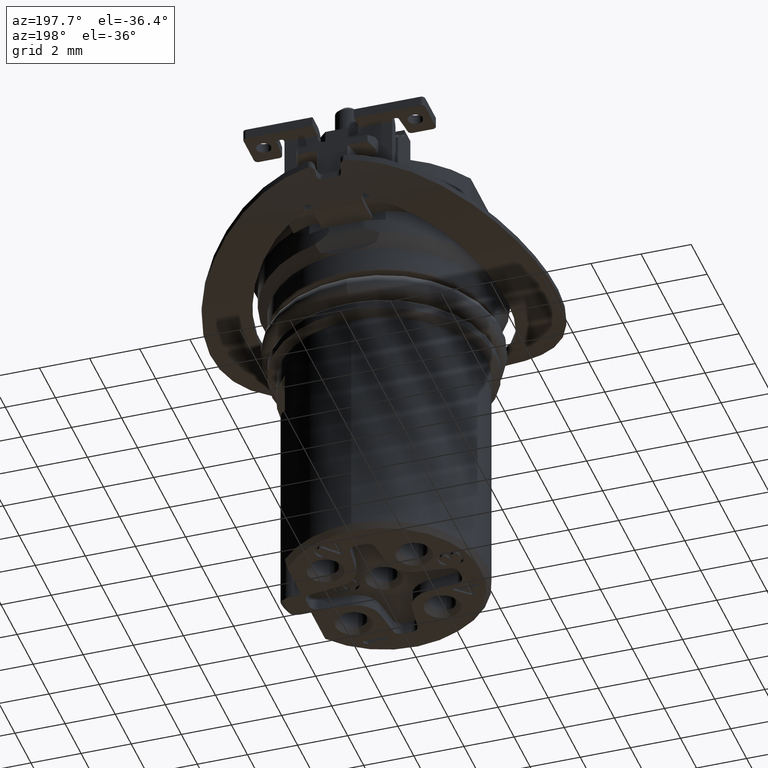
[diagram: clean part render]
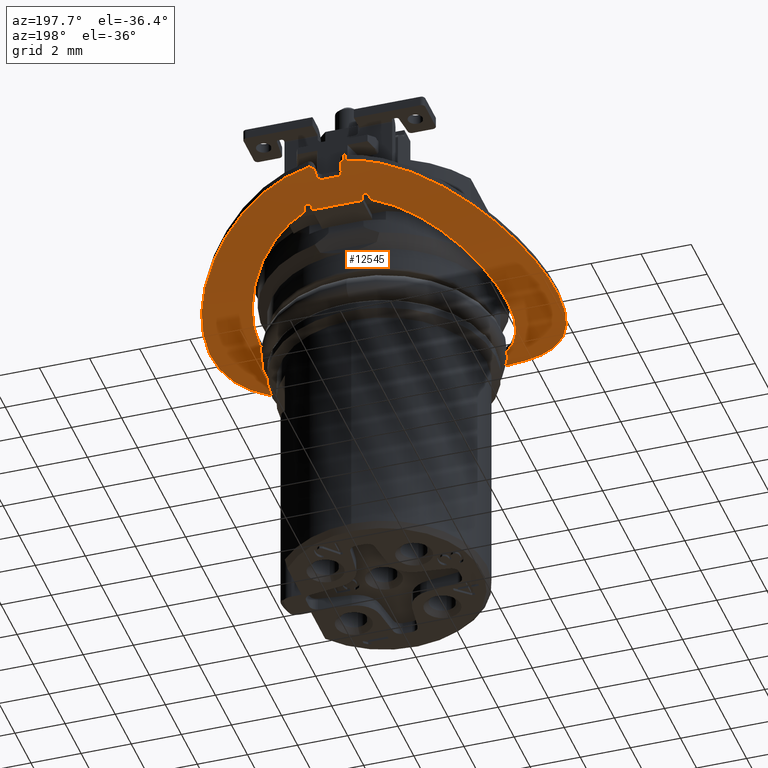
[diagram: same view with one face highlighted and labeled with its STEP entity id]
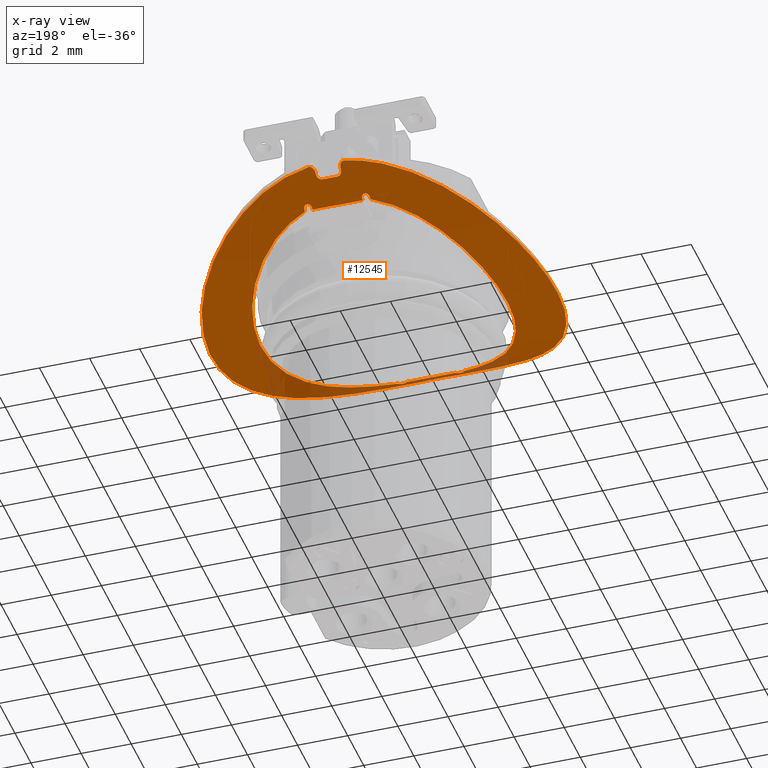
[diagram: x-ray of the same camera — body ghosted, the highlighted face saturated]
A machine part, auxiliary view. The second image highlights one B-rep face of the part: STEP entity #12545.
The next image is the same camera in x-ray: the body ghosted, the highlighted face saturated — about 8% of this face is hidden behind the body in this view.
In plain terms, the highlighted cylindrical surface (partial cylindrical patch) has radius 11.6082 mm, axis along (1, 0, 0).
Its self-contained STEP definition (entity closure, byte-faithful):
#1129=CARTESIAN_POINT('',(3.E-1,6.75E0,-3.337183663975E0));
#1130=CARTESIAN_POINT('',(3.131810634956E-1,6.75E0,-3.337183663975E0));
#1131=CARTESIAN_POINT('',(3.398528558982E-1,6.752634215733E0,
-3.335301688194E0));
#1132=CARTESIAN_POINT('',(3.787897037414E-1,6.764628060218E0,
-3.326717832133E0));
#1133=CARTESIAN_POINT('',(4.159956150611E-1,6.785154247117E0,
-3.311974506276E0));
#1134=CARTESIAN_POINT('',(4.495925898192E-1,6.814637076929E0,
-3.290679590589E0));
#1135=CARTESIAN_POINT('',(4.771737358887E-1,6.853080821155E0,
-3.262699714013E0));
#1136=CARTESIAN_POINT('',(4.955613804710E-1,6.899103695345E0,
-3.228878541785E0));
#1137=CARTESIAN_POINT('',(5.E-1,6.932709879553E0,-3.203909099699E0));
#1138=CARTESIAN_POINT('',(5.E-1,6.95E0,-3.190984788626E0));
#1159=CARTESIAN_POINT('',(-5.E-1,6.95E0,-3.190984788626E0));
#1160=CARTESIAN_POINT('',(-5.E-1,6.932710212802E0,-3.203908850597E0));
#1161=CARTESIAN_POINT('',(-4.955617450406E-1,6.899104375606E0,
-3.228878044306E0));
#1162=CARTESIAN_POINT('',(-4.771726600282E-1,6.853078712756E0,
-3.262701257940E0));
#1163=CARTESIAN_POINT('',(-4.495920662081E-1,6.814636636423E0,
-3.290679907317E0));
#1164=CARTESIAN_POINT('',(-4.159944937398E-1,6.785153354026E0,
-3.311975150929E0));
#1165=CARTESIAN_POINT('',(-3.787878308700E-1,6.764627211779E0,
-3.326718440025E0));
#1166=CARTESIAN_POINT('',(-3.398503176880E-1,6.752633743913E0,
-3.335302025460E0));
#1167=CARTESIAN_POINT('',(-3.131800002200E-1,6.75E0,-3.337183663975E0));
#1168=CARTESIAN_POINT('',(-3.E-1,6.75E0,-3.337183663975E0));
#1189=CARTESIAN_POINT('',(5.E-1,7.011414153925E0,-3.144760164902E0));
#1190=CARTESIAN_POINT('',(5.E-1,7.030535960378E0,-3.130268320892E0));
#1191=CARTESIAN_POINT('',(5.052296187194E-1,7.066680578301E0,
-3.102693874852E0));
#1192=CARTESIAN_POINT('',(5.272468937289E-1,7.116784055909E0,
-3.064011067424E0));
#1193=CARTESIAN_POINT('',(5.594848944239E-1,7.156530321737E0,
-3.033000823438E0));
#1194=CARTESIAN_POINT('',(5.975179586036E-1,7.185193522242E0,
-3.010466491975E0));
#1195=CARTESIAN_POINT('',(6.382648478375E-1,7.203283985379E0,
-2.996169473675E0));
#1196=CARTESIAN_POINT('',(6.800024323347E-1,7.211877274746E0,
-2.989358273739E0));
#1197=CARTESIAN_POINT('',(7.079348238711E-1,7.211755357460E0,
-2.989455023544E0));
#1198=CARTESIAN_POINT('',(7.219758316318E-1,7.210203144626E0,
-2.990685240106E0));
#1200=CARTESIAN_POINT('',(5.E-1,0.E0,6.106712893263E0));
#1201=DIRECTION('',(1.E0,0.E0,0.E0));
#1202=DIRECTION('',(0.E0,5.987160902878E-1,-8.009613244286E-1));
#1203=AXIS2_PLACEMENT_3D('',#1200,#1201,#1202);
#1205=DIRECTION('',(1.E0,0.E0,0.E0));
#1206=VECTOR('',#1205,6.E-1);
#1207=CARTESIAN_POINT('',(-3.E-1,6.75E0,-3.337183663975E0));
#1208=LINE('',#1207,#1206);
#1209=CARTESIAN_POINT('',(-5.E-1,0.E0,6.106712893263E0));
#1210=DIRECTION('',(1.E0,0.E0,0.E0));
#1211=DIRECTION('',(0.E0,5.987160902878E-1,-8.009613244286E-1));
#1212=AXIS2_PLACEMENT_3D('',#1209,#1210,#1211);
#1214=CARTESIAN_POINT('',(-7.219758316319E-1,7.210203144626E0,
-2.990685240106E0));
#1215=CARTESIAN_POINT('',(-7.079348238711E-1,7.211755357460E0,
-2.989455023544E0));
#1216=CARTESIAN_POINT('',(-6.800024323348E-1,7.211877274746E0,
-2.989358273739E0));
#1217=CARTESIAN_POINT('',(-6.382648478375E-1,7.203283985379E0,
-2.996169473675E0));
#1218=CARTESIAN_POINT('',(-5.975179586037E-1,7.185193522242E0,
-3.010466491975E0));
#1219=CARTESIAN_POINT('',(-5.594848944239E-1,7.156530321737E0,
-3.033000823438E0));
#1220=CARTESIAN_POINT('',(-5.272468937289E-1,7.116784055909E0,
-3.064011067424E0));
#1221=CARTESIAN_POINT('',(-5.052296187194E-1,7.066680578301E0,
-3.102693874852E0));
#1222=CARTESIAN_POINT('',(-5.E-1,7.030535960378E0,-3.130268320892E0));
#1223=CARTESIAN_POINT('',(-5.E-1,7.011414153925E0,-3.144760164902E0));
#1225=CARTESIAN_POINT('',(-5.E-1,-7.011414153925E0,-3.144760164902E0));
#1226=CARTESIAN_POINT('',(-5.E-1,-7.030535960378E0,-3.130268320892E0));
#1227=CARTESIAN_POINT('',(-5.052296187194E-1,-7.066680578301E0,
-3.102693874852E0));
#1228=CARTESIAN_POINT('',(-5.272468937289E-1,-7.116784055909E0,
-3.064011067424E0));
#1229=CARTESIAN_POINT('',(-5.594848944239E-1,-7.156530321737E0,
-3.033000823438E0));
#1230=CARTESIAN_POINT('',(-5.975179586037E-1,-7.185193522242E0,
-3.010466491975E0));
#1231=CARTESIAN_POINT('',(-6.382648478375E-1,-7.203283985379E0,
-2.996169473675E0));
#1232=CARTESIAN_POINT('',(-6.800024323348E-1,-7.211877274746E0,
-2.989358273739E0));
#1233=CARTESIAN_POINT('',(-7.079348238711E-1,-7.211755357460E0,
-2.989455023544E0));
#1234=CARTESIAN_POINT('',(-7.219758316319E-1,-7.210203144626E0,
-2.990685240106E0));
#1236=CARTESIAN_POINT('',(-5.E-1,0.E0,6.106712893263E0));
#1237=DIRECTION('',(1.E0,0.E0,0.E0));
#1238=DIRECTION('',(0.E0,-6.040066862772E-1,-7.969792487464E-1));
#1239=AXIS2_PLACEMENT_3D('',#1236,#1237,#1238);
#1241=DIRECTION('',(1.E0,0.E0,0.E0));
#1242=VECTOR('',#1241,6.E-1);
#1243=CARTESIAN_POINT('',(-3.E-1,-6.75E0,-3.337183663975E0));
#1244=LINE('',#1243,#1242);
#1245=CARTESIAN_POINT('',(5.E-1,0.E0,6.106712893263E0));
#1246=DIRECTION('',(1.E0,0.E0,0.E0));
#1247=DIRECTION('',(0.E0,-6.040066862772E-1,-7.969792487464E-1));
#1248=AXIS2_PLACEMENT_3D('',#1245,#1246,#1247);
#1250=CARTESIAN_POINT('',(7.219758316318E-1,-7.210203144626E0,
-2.990685240106E0));
#1251=CARTESIAN_POINT('',(7.079348238711E-1,-7.211755357460E0,
-2.989455023544E0));
#1252=CARTESIAN_POINT('',(6.800024323347E-1,-7.211877274746E0,
-2.989358273739E0));
#1253=CARTESIAN_POINT('',(6.382648478375E-1,-7.203283985379E0,
-2.996169473675E0));
#1254=CARTESIAN_POINT('',(5.975179586036E-1,-7.185193522242E0,
-3.010466491975E0));
#1255=CARTESIAN_POINT('',(5.594848944239E-1,-7.156530321737E0,
-3.033000823438E0));
#1256=CARTESIAN_POINT('',(5.272468937289E-1,-7.116784055909E0,
-3.064011067424E0));
#1257=CARTESIAN_POINT('',(5.052296187194E-1,-7.066680578301E0,
-3.102693874852E0));
#1258=CARTESIAN_POINT('',(5.E-1,-7.030535960378E0,-3.130268320892E0));
#1259=CARTESIAN_POINT('',(5.E-1,-7.011414153925E0,-3.144760164902E0));
#1261=CARTESIAN_POINT('',(-1.E0,5.873723243369E0,-3.905732234882E0));
#1262=CARTESIAN_POINT('',(-1.E0,5.887692751204E0,-3.897537131506E0));
#1263=CARTESIAN_POINT('',(-1.003743172493E0,5.914248780812E0,
-3.881881486718E0));
#1264=CARTESIAN_POINT('',(-1.019586521215E0,5.951281933749E0,
-3.859853870292E0));
#1265=CARTESIAN_POINT('',(-1.043530913763E0,5.981586843274E0,
-3.841684562420E0));
#1266=CARTESIAN_POINT('',(-1.072804709481E0,6.004003990363E0,
-3.828163400426E0));
#1267=CARTESIAN_POINT('',(-1.105207039571E0,6.018274143973E0,
-3.819520100605E0));
#1268=CARTESIAN_POINT('',(-1.138977376303E0,6.024600702757E0,
-3.815679301461E0));
#1269=CARTESIAN_POINT('',(-1.173057460028E0,6.023252020725E0,
-3.816498529075E0));
#1270=CARTESIAN_POINT('',(-1.206557351316E0,6.014124245413E0,
-3.822036549582E0));
#1271=CARTESIAN_POINT('',(-1.238024634449E0,5.996989014969E0,
-3.832401893246E0));
#1272=CARTESIAN_POINT('',(-1.265719003278E0,5.971717268717E0,
-3.847616131101E0));
#1273=CARTESIAN_POINT('',(-1.287074658659E0,5.938731297591E0,
-3.867339631133E0));
#1274=CARTESIAN_POINT('',(-1.295309719748E0,5.913446444021E0,
-3.882335385135E0));
#1275=CARTESIAN_POINT('',(-1.297721162952E0,5.899770470019E0,
-3.890406221007E0));
#1277=DIRECTION('',(1.E0,0.E0,0.E0));
#1278=VECTOR('',#1277,2.E0);
#1279=CARTESIAN_POINT('',(-1.E0,5.801196627952E0,-3.947927819743E0));
#1280=LINE('',#1279,#1278);
#1281=CARTESIAN_POINT('',(1.297721162952E0,5.899770470019E0,-3.890406221007E0));
#1282=CARTESIAN_POINT('',(1.295309552343E0,5.913447393421E0,-3.882334824849E0));
#1283=CARTESIAN_POINT('',(1.287073379600E0,5.938733267717E0,-3.867338452890E0));
#1284=CARTESIAN_POINT('',(1.265721301836E0,5.971714080347E0,-3.847618040753E0));
#1285=CARTESIAN_POINT('',(1.238026552034E0,5.996988139877E0,-3.832402424883E0));
#1286=CARTESIAN_POINT('',(1.206556173029E0,6.014124632168E0,-3.822036314655E0));
#1287=CARTESIAN_POINT('',(1.173060556664E0,6.023251227084E0,-3.816499010847E0));
#1288=CARTESIAN_POINT('',(1.138982683883E0,6.024600932150E0,-3.815679161763E0));
#1289=CARTESIAN_POINT('',(1.105212314387E0,6.018276190438E0,-3.819518860202E0));
#1290=CARTESIAN_POINT('',(1.072802979821E0,6.004003253007E0,-3.828163848024E0));
#1291=CARTESIAN_POINT('',(1.043533170992E0,5.981588111039E0,-3.841683792032E0));
#1292=CARTESIAN_POINT('',(1.019589377500E0,5.951287663153E0,-3.859850455490E0));
#1293=CARTESIAN_POINT('',(1.003741544151E0,5.914244947874E0,-3.881883766440E0));
#1294=CARTESIAN_POINT('',(1.E0,5.887691035860E0,-3.897538137799E0));
#1295=CARTESIAN_POINT('',(1.E0,5.873723243369E0,-3.905732234882E0));
#1297=CARTESIAN_POINT('',(1.319104903970E0,5.778497248345E0,-3.960990505958E0));
#1298=CARTESIAN_POINT('',(1.311952486685E0,5.819060622462E0,-3.937708597818E0));
#1299=CARTESIAN_POINT('',(1.304824569099E0,5.859485051879E0,-3.914180542149E0));
#1300=CARTESIAN_POINT('',(1.297721162952E0,5.899770470019E0,-3.890406221007E0));
#1302=CARTESIAN_POINT('',(1.297721162952E0,-5.899770470019E0,
-3.890406221007E0));
#1303=CARTESIAN_POINT('',(1.304824569099E0,-5.859485051879E0,
-3.914180542149E0));
#1304=CARTESIAN_POINT('',(1.311952486685E0,-5.819060622462E0,
-3.937708597818E0));
#1305=CARTESIAN_POINT('',(1.319104903970E0,-5.778497248345E0,
-3.960990505958E0));
#1307=CARTESIAN_POINT('',(1.E0,-5.873723243369E0,-3.905732234882E0));
#1308=CARTESIAN_POINT('',(1.E0,-5.887692751204E0,-3.897537131506E0));
#1309=CARTESIAN_POINT('',(1.003743172493E0,-5.914248780812E0,
-3.881881486718E0));
#1310=CARTESIAN_POINT('',(1.019586521215E0,-5.951281933749E0,
-3.859853870292E0));
#1311=CARTESIAN_POINT('',(1.043530913763E0,-5.981586843274E0,
-3.841684562420E0));
#1312=CARTESIAN_POINT('',(1.072804709481E0,-6.004003990363E0,
-3.828163400426E0));
#1313=CARTESIAN_POINT('',(1.105207039571E0,-6.018274143973E0,
-3.819520100605E0));
#1314=CARTESIAN_POINT('',(1.138977376303E0,-6.024600702757E0,
-3.815679301461E0));
#1315=CARTESIAN_POINT('',(1.173057460028E0,-6.023252020725E0,
-3.816498529075E0));
#1316=CARTESIAN_POINT('',(1.206557351316E0,-6.014124245413E0,
-3.822036549582E0));
#1317=CARTESIAN_POINT('',(1.238024634449E0,-5.996989014969E0,
-3.832401893246E0));
#1318=CARTESIAN_POINT('',(1.265719003278E0,-5.971717268717E0,
-3.847616131101E0));
#1319=CARTESIAN_POINT('',(1.287074658659E0,-5.938731297591E0,
-3.867339631133E0));
#1320=CARTESIAN_POINT('',(1.295309719748E0,-5.913446444021E0,
-3.882335385135E0));
#1321=CARTESIAN_POINT('',(1.297721162952E0,-5.899770470019E0,
-3.890406221007E0));
#1323=CARTESIAN_POINT('',(-1.297721162952E0,-5.899770470019E0,
-3.890406221007E0));
#1324=CARTESIAN_POINT('',(-1.295309552343E0,-5.913447393421E0,
-3.882334824849E0));
#1325=CARTESIAN_POINT('',(-1.287073379600E0,-5.938733267717E0,
-3.867338452890E0));
#1326=CARTESIAN_POINT('',(-1.265721301836E0,-5.971714080347E0,
-3.847618040753E0));
#1327=CARTESIAN_POINT('',(-1.238026552034E0,-5.996988139877E0,
-3.832402424883E0));
#1328=CARTESIAN_POINT('',(-1.206556173029E0,-6.014124632168E0,
-3.822036314655E0));
#1329=CARTESIAN_POINT('',(-1.173060556664E0,-6.023251227084E0,
-3.816499010847E0));
#1330=CARTESIAN_POINT('',(-1.138982683883E0,-6.024600932150E0,
-3.815679161763E0));
#1331=CARTESIAN_POINT('',(-1.105212314387E0,-6.018276190438E0,
-3.819518860202E0));
#1332=CARTESIAN_POINT('',(-1.072802979821E0,-6.004003253007E0,
-3.828163848024E0));
#1333=CARTESIAN_POINT('',(-1.043533170992E0,-5.981588111039E0,
-3.841683792032E0));
#1334=CARTESIAN_POINT('',(-1.019589377500E0,-5.951287663153E0,
-3.859850455490E0));
#1335=CARTESIAN_POINT('',(-1.003741544151E0,-5.914244947874E0,
-3.881883766440E0));
#1336=CARTESIAN_POINT('',(-1.E0,-5.887691035860E0,-3.897538137799E0));
#1337=CARTESIAN_POINT('',(-1.E0,-5.873723243369E0,-3.905732234882E0));
#1339=CARTESIAN_POINT('',(-1.297721162952E0,-5.899770470019E0,
-3.890406221007E0));
#1340=CARTESIAN_POINT('',(-1.304824569099E0,-5.859485051879E0,
-3.914180542149E0));
#1341=CARTESIAN_POINT('',(-1.311952486685E0,-5.819060622462E0,
-3.937708597818E0));
#1342=CARTESIAN_POINT('',(-1.319104903970E0,-5.778497248345E0,
-3.960990505958E0));
#1344=CARTESIAN_POINT('',(-1.319104903970E0,5.778497248345E0,
-3.960990505958E0));
#1345=CARTESIAN_POINT('',(-1.311952486685E0,5.819060622462E0,
-3.937708597818E0));
#1346=CARTESIAN_POINT('',(-1.304824569099E0,5.859485051879E0,
-3.914180542149E0));
#1347=CARTESIAN_POINT('',(-1.297721162952E0,5.899770470019E0,
-3.890406221007E0));
#1391=CARTESIAN_POINT('',(-7.219758316319E-1,-7.210203144626E0,
-2.990685240106E0));
#1392=CARTESIAN_POINT('',(-9.150797931498E-1,-7.188855784640E0,
-3.007604231651E0));
#1393=CARTESIAN_POINT('',(-1.304978044308E0,-7.128446228461E0,
-3.055283953443E0));
#1394=CARTESIAN_POINT('',(-1.899387799673E0,-6.980155646160E0,
-3.169257777058E0));
#1395=CARTESIAN_POINT('',(-2.505246089131E0,-6.766902793558E0,
-3.326717064664E0));
#1396=CARTESIAN_POINT('',(-3.118521780971E0,-6.480681549539E0,
-3.526631757696E0));
#1397=CARTESIAN_POINT('',(-3.728247916319E0,-6.115929409872E0,
-3.763466673315E0));
#1398=CARTESIAN_POINT('',(-4.317086033494E0,-5.673016773033E0,
-4.025771826255E0));
#1399=CARTESIAN_POINT('',(-4.865010504817E0,-5.160445968101E0,
-4.297226707353E0));
#1400=CARTESIAN_POINT('',(-5.355992234199E0,-4.591890883674E0,
-4.561107440739E0));
#1401=CARTESIAN_POINT('',(-5.780369230586E0,-3.982459292256E0,
-4.803710382652E0));
#1402=CARTESIAN_POINT('',(-6.134671977960E0,-3.345215213736E0,
-5.015857372210E0));
#1403=CARTESIAN_POINT('',(-6.419316100624E0,-2.690164390761E0,
-5.192255305630E0));
#1404=CARTESIAN_POINT('',(-6.636608227538E0,-2.024356110253E0,
-5.330318176342E0));
#1405=CARTESIAN_POINT('',(-6.789363934818E0,-1.352305327746E0,
-5.429075353500E0));
#1406=CARTESIAN_POINT('',(-6.879977561193E0,-6.769241843446E-1,
-5.488303247282E0));
#1407=CARTESIAN_POINT('',(-6.910011219517E0,2.628034456720E-10,
-5.508038651924E0));
#1408=CARTESIAN_POINT('',(-6.879977560740E0,6.769241917907E-1,
-5.488303246984E0));
#1409=CARTESIAN_POINT('',(-6.789363933016E0,1.352305337957E0,
-5.429075352326E0));
#1410=CARTESIAN_POINT('',(-6.636608224352E0,2.024356122019E0,
-5.330318174294E0));
#1411=CARTESIAN_POINT('',(-6.419316095965E0,2.690164402911E0,
-5.192255302705E0));
#1412=CARTESIAN_POINT('',(-6.134671973059E0,3.345215223686E0,
-5.015857369215E0));
#1413=CARTESIAN_POINT('',(-5.780369223469E0,3.982459303779E0,
-4.803710378471E0));
#1414=CARTESIAN_POINT('',(-5.355992225719E0,4.591890894641E0,
-4.561107436014E0));
#1415=CARTESIAN_POINT('',(-4.865010494592E0,5.160445978684E0,
-4.297226702067E0));
#1416=CARTESIAN_POINT('',(-4.317086025210E0,5.673016779744E0,
-4.025771822409E0));
#1417=CARTESIAN_POINT('',(-3.728247911446E0,6.115929412989E0,
-3.763466671336E0));
#1418=CARTESIAN_POINT('',(-3.118521778222E0,6.480681550927E0,
-3.526631756746E0));
#1419=CARTESIAN_POINT('',(-2.505246087260E0,6.766902794330E0,
-3.326717064109E0));
#1420=CARTESIAN_POINT('',(-1.899387797042E0,6.980155646954E0,
-3.169257776459E0));
#1421=CARTESIAN_POINT('',(-1.304978042619E0,7.128446228755E0,
-3.055283953210E0));
#1422=CARTESIAN_POINT('',(-9.150797924754E-1,7.188855784715E0,
-3.007604231592E0));
#1423=CARTESIAN_POINT('',(-7.219758316319E-1,7.210203144626E0,
-2.990685240106E0));
#1433=CARTESIAN_POINT('',(-3.E-1,-6.75E0,-3.337183663975E0));
#1434=CARTESIAN_POINT('',(-3.131810634957E-1,-6.75E0,-3.337183663975E0));
#1435=CARTESIAN_POINT('',(-3.398528558982E-1,-6.752634215733E0,
-3.335301688194E0));
#1436=CARTESIAN_POINT('',(-3.787897037415E-1,-6.764628060218E0,
-3.326717832133E0));
#1437=CARTESIAN_POINT('',(-4.159956150611E-1,-6.785154247117E0,
-3.311974506276E0));
#1438=CARTESIAN_POINT('',(-4.495925898192E-1,-6.814637076929E0,
-3.290679590589E0));
#1439=CARTESIAN_POINT('',(-4.771737358887E-1,-6.853080821155E0,
-3.262699714013E0));
#1440=CARTESIAN_POINT('',(-4.955613804710E-1,-6.899103695345E0,
-3.228878541785E0));
#1441=CARTESIAN_POINT('',(-5.E-1,-6.932709879553E0,-3.203909099699E0));
#1442=CARTESIAN_POINT('',(-5.E-1,-6.95E0,-3.190984788626E0));
#1463=CARTESIAN_POINT('',(5.E-1,-6.95E0,-3.190984788626E0));
#1464=CARTESIAN_POINT('',(5.E-1,-6.932710212802E0,-3.203908850597E0));
#1465=CARTESIAN_POINT('',(4.955617450406E-1,-6.899104375606E0,
-3.228878044306E0));
#1466=CARTESIAN_POINT('',(4.771726600282E-1,-6.853078712756E0,
-3.262701257940E0));
#1467=CARTESIAN_POINT('',(4.495920662081E-1,-6.814636636423E0,
-3.290679907317E0));
#1468=CARTESIAN_POINT('',(4.159944937398E-1,-6.785153354026E0,
-3.311975150929E0));
#1469=CARTESIAN_POINT('',(3.787878308700E-1,-6.764627211779E0,
-3.326718440025E0));
#1470=CARTESIAN_POINT('',(3.398503176880E-1,-6.752633743913E0,
-3.335302025460E0));
#1471=CARTESIAN_POINT('',(3.131800002200E-1,-6.75E0,-3.337183663975E0));
#1472=CARTESIAN_POINT('',(3.E-1,-6.75E0,-3.337183663975E0));
#1497=CARTESIAN_POINT('',(7.219758316318E-1,7.210203144626E0,
-2.990685240106E0));
#1498=CARTESIAN_POINT('',(9.150797924306E-1,7.188855784720E0,
-3.007604231588E0));
#1499=CARTESIAN_POINT('',(1.304978042484E0,7.128446228781E0,-3.055283953190E0));
#1500=CARTESIAN_POINT('',(1.899387796835E0,6.980155647008E0,-3.169257776417E0));
#1501=CARTESIAN_POINT('',(2.505246086834E0,6.766902794508E0,-3.326717063982E0));
#1502=CARTESIAN_POINT('',(3.118521778199E0,6.480681550952E0,-3.526631756730E0));
#1503=CARTESIAN_POINT('',(3.728247912156E0,6.115929412610E0,-3.763466671597E0));
#1504=CARTESIAN_POINT('',(4.317086028632E0,5.673016777034E0,-4.025771823981E0));
#1505=CARTESIAN_POINT('',(4.865010498895E0,5.160445974187E0,-4.297226704300E0));
#1506=CARTESIAN_POINT('',(5.355992228631E0,4.591890890837E0,-4.561107437642E0));
#1507=CARTESIAN_POINT('',(5.780369225895E0,3.982459299839E0,-4.803710379896E0));
#1508=CARTESIAN_POINT('',(6.134671974535E0,3.345215220686E0,-5.015857370117E0));
#1509=CARTESIAN_POINT('',(6.419316097597E0,2.690164398706E0,-5.192255303728E0));
#1510=CARTESIAN_POINT('',(6.636608225555E0,2.024356117618E0,-5.330318175067E0));
#1511=CARTESIAN_POINT('',(6.789363933789E0,1.352305333682E0,-5.429075352829E0));
#1512=CARTESIAN_POINT('',(6.879977561010E0,6.769241880247E-1,
-5.488303247161E0));
#1513=CARTESIAN_POINT('',(6.910011219517E0,-1.187892284538E-9,
-5.508038651924E0));
#1514=CARTESIAN_POINT('',(6.879977560923E0,-6.769241881039E-1,
-5.488303247104E0));
#1515=CARTESIAN_POINT('',(6.789363934047E0,-1.352305332012E0,
-5.429075352998E0));
#1516=CARTESIAN_POINT('',(6.636608226338E0,-2.024356114646E0,
-5.330318175570E0));
#1517=CARTESIAN_POINT('',(6.419316098995E0,-2.690164394959E0,
-5.192255304608E0));
#1518=CARTESIAN_POINT('',(6.134671976489E0,-3.345215216727E0,
-5.015857371310E0));
#1519=CARTESIAN_POINT('',(5.780369228165E0,-3.982459296189E0,
-4.803710381229E0));
#1520=CARTESIAN_POINT('',(5.355992231291E0,-4.591890887472E0,
-4.561107439113E0));
#1521=CARTESIAN_POINT('',(4.865010500520E0,-5.160445972592E0,
-4.297226705122E0));
#1522=CARTESIAN_POINT('',(4.317086030080E0,-5.673016775737E0,
-4.025771824687E0));
#1523=CARTESIAN_POINT('',(3.728247915617E0,-6.115929410246E0,
-3.763466673058E0));
#1524=CARTESIAN_POINT('',(3.118521780999E0,-6.480681549512E0,
-3.526631757714E0));
#1525=CARTESIAN_POINT('',(2.505246089562E0,-6.766902793377E0,
-3.326717064793E0));
#1526=CARTESIAN_POINT('',(1.899387799886E0,-6.980155646105E0,
-3.169257777101E0));
#1527=CARTESIAN_POINT('',(1.304978044447E0,-7.128446228434E0,
-3.055283953463E0));
#1528=CARTESIAN_POINT('',(9.150797931957E-1,-7.188855784635E0,
-3.007604231655E0));
#1529=CARTESIAN_POINT('',(7.219758316318E-1,-7.210203144626E0,
-2.990685240106E0));
#1590=CARTESIAN_POINT('',(-1.E0,0.E0,6.106712893263E0));
#1591=DIRECTION('',(1.E0,0.E0,0.E0));
#1592=DIRECTION('',(0.E0,4.997510451912E-1,-8.661690902072E-1));
#1593=AXIS2_PLACEMENT_3D('',#1590,#1591,#1592);
#1784=CARTESIAN_POINT('',(-1.319104903970E0,5.778497248345E0,
-3.960990505958E0));
#1785=CARTESIAN_POINT('',(-1.464049802877E0,5.728886280402E0,
-3.989465405384E0));
#1786=CARTESIAN_POINT('',(-1.756075976667E0,5.611381917864E0,
-4.055982126434E0));
#1787=CARTESIAN_POINT('',(-2.199694536366E0,5.372899869839E0,
-4.184676110511E0));
#1788=CARTESIAN_POINT('',(-2.642049795340E0,5.066435664257E0,
-4.339765246111E0));
#1789=CARTESIAN_POINT('',(-3.073873581460E0,4.688150889592E0,
-4.515859227094E0));
#1790=CARTESIAN_POINT('',(-3.481561466021E0,4.240126399233E0,
-4.703455966958E0));
#1791=CARTESIAN_POINT('',(-3.851316809761E0,3.730430080081E0,
-4.890586287422E0));
#1792=CARTESIAN_POINT('',(-4.172269942447E0,3.170845509633E0,
-5.065426102748E0));
#1793=CARTESIAN_POINT('',(-4.437784716927E0,2.573696136411E0,
-5.218349626237E0));
#1794=CARTESIAN_POINT('',(-4.644725086123E0,1.950023490654E0,
-5.342515978479E0));
#1795=CARTESIAN_POINT('',(-4.792238063275E0,1.308625138836E0,
-5.433596659215E0));
#1796=CARTESIAN_POINT('',(-4.880440728192E0,6.567617817031E-1,
-5.489053813561E0));
#1797=CARTESIAN_POINT('',(-4.909779636271E0,-7.967767140515E-9,
-5.507663368942E0));
#1798=CARTESIAN_POINT('',(-4.880440726725E0,-6.567617974218E-1,
-5.489053812634E0));
#1799=CARTESIAN_POINT('',(-4.792238060858E0,-1.308625152275E0,
-5.433596657704E0));
#1800=CARTESIAN_POINT('',(-4.644725081529E0,-1.950023507486E0,
-5.342515975671E0));
#1801=CARTESIAN_POINT('',(-4.437784710141E0,-2.573696154080E0,
-5.218349622232E0));
#1802=CARTESIAN_POINT('',(-4.172269933365E0,-3.170845527610E0,
-5.065426097637E0));
#1803=CARTESIAN_POINT('',(-3.851316800029E0,-3.730430094741E0,
-4.890586282336E0));
#1804=CARTESIAN_POINT('',(-3.481561459969E0,-4.240126406314E0,
-4.703455964080E0));
#1805=CARTESIAN_POINT('',(-3.073873577727E0,-4.688150893018E0,
-4.515859225533E0));
#1806=CARTESIAN_POINT('',(-2.642049795032E0,-5.066435664428E0,
-4.339765246012E0));
#1807=CARTESIAN_POINT('',(-2.199694534933E0,-5.372899870742E0,
-4.184676110045E0));
#1808=CARTESIAN_POINT('',(-1.756075976664E0,-5.611381917799E0,
-4.055982126460E0));
#1809=CARTESIAN_POINT('',(-1.464049802897E0,-5.728886280395E0,
-3.989465405388E0));
#1810=CARTESIAN_POINT('',(-1.319104903970E0,-5.778497248345E0,
-3.960990505958E0));
#2000=CARTESIAN_POINT('',(-1.E0,0.E0,6.106712893263E0));
#2001=DIRECTION('',(1.E0,0.E0,0.E0));
#2002=DIRECTION('',(0.E0,-5.059989375112E-1,-8.625341009129E-1));
#2003=AXIS2_PLACEMENT_3D('',#2000,#2001,#2002);
#2039=CARTESIAN_POINT('',(1.E0,0.E0,6.106712893263E0));
#2040=DIRECTION('',(1.E0,0.E0,0.E0));
#2041=DIRECTION('',(0.E0,-5.059989375112E-1,-8.625341009129E-1));
#2042=AXIS2_PLACEMENT_3D('',#2039,#2040,#2041);
#2085=CARTESIAN_POINT('',(1.319104903970E0,-5.778497248345E0,
-3.960990505958E0));
#2086=CARTESIAN_POINT('',(1.464049802844E0,-5.728886280413E0,
-3.989465405377E0));
#2087=CARTESIAN_POINT('',(1.756075976537E0,-5.611381917887E0,
-4.055982126415E0));
#2088=CARTESIAN_POINT('',(2.199694535551E0,-5.372899870364E0,
-4.184676110244E0));
#2089=CARTESIAN_POINT('',(2.642049794755E0,-5.066435664583E0,
-4.339765245926E0));
#2090=CARTESIAN_POINT('',(3.073873577116E0,-4.688150893642E0,
-4.515859225261E0));
#2091=CARTESIAN_POINT('',(3.481561459996E0,-4.240126406319E0,
-4.703455964086E0));
#2092=CARTESIAN_POINT('',(3.851316800231E0,-3.730430094469E0,
-4.890586282439E0));
#2093=CARTESIAN_POINT('',(4.172269933932E0,-3.170845526520E0,
-5.065426097953E0));
#2094=CARTESIAN_POINT('',(4.437784710508E0,-2.573696153117E0,
-5.218349622449E0));
#2095=CARTESIAN_POINT('',(4.644725081819E0,-1.950023506419E0,
-5.342515975848E0));
#2096=CARTESIAN_POINT('',(4.792238060929E0,-1.308625151795E0,
-5.433596657749E0));
#2097=CARTESIAN_POINT('',(4.880440726755E0,-6.567617970868E-1,
-5.489053812653E0));
#2098=CARTESIAN_POINT('',(4.909779636271E0,-7.647020766610E-9,
-5.507663368942E0));
#2099=CARTESIAN_POINT('',(4.880440728162E0,6.567617820397E-1,
-5.489053813542E0));
#2100=CARTESIAN_POINT('',(4.792238063203E0,1.308625139321E0,-5.433596659169E0));
#2101=CARTESIAN_POINT('',(4.644725085832E0,1.950023491724E0,-5.342515978301E0));
#2102=CARTESIAN_POINT('',(4.437784716560E0,2.573696137375E0,-5.218349626019E0));
#2103=CARTESIAN_POINT('',(4.172269941879E0,3.170845510726E0,-5.065426102431E0));
#2104=CARTESIAN_POINT('',(3.851316809565E0,3.730430080344E0,-4.890586287321E0));
#2105=CARTESIAN_POINT('',(3.481561466E0,4.240126399220E0,-4.703455966956E0));
#2106=CARTESIAN_POINT('',(3.073873582089E0,4.688150888951E0,-4.515859227374E0));
#2107=CARTESIAN_POINT('',(2.642049795626E0,5.066435664097E0,-4.339765246200E0));
#2108=CARTESIAN_POINT('',(2.199694535741E0,5.372899870222E0,-4.184676110310E0));
#2109=CARTESIAN_POINT('',(1.756075976796E0,5.611381917775E0,-4.055982126479E0));
#2110=CARTESIAN_POINT('',(1.464049802929E0,5.728886280384E0,-3.989465405394E0));
#2111=CARTESIAN_POINT('',(1.319104903970E0,5.778497248345E0,-3.960990505958E0));
#2172=CARTESIAN_POINT('',(1.E0,0.E0,6.106712893263E0));
#2173=DIRECTION('',(1.E0,0.E0,0.E0));
#2174=DIRECTION('',(0.E0,4.997510451912E-1,-8.661690902072E-1));
#2175=AXIS2_PLACEMENT_3D('',#2172,#2173,#2174);
#2579=DIRECTION('',(1.E0,0.E0,0.E0));
#2580=VECTOR('',#2579,2.E0);
#2581=CARTESIAN_POINT('',(-1.E0,-5.801196627952E0,-3.947927819743E0));
#2582=LINE('',#2581,#2580);
#10856=CARTESIAN_POINT('',(-1.E0,5.801196627952E0,-3.947927819743E0));
#10858=VERTEX_POINT('',#10856);
#10859=CARTESIAN_POINT('',(-1.E0,-5.801196627952E0,-3.947927819743E0));
#10861=VERTEX_POINT('',#10859);
#10864=CARTESIAN_POINT('',(1.E0,5.801196627952E0,-3.947927819743E0));
#10866=VERTEX_POINT('',#10864);
#10867=CARTESIAN_POINT('',(1.E0,-5.801196627952E0,-3.947927819743E0));
#10869=VERTEX_POINT('',#10867);
#10880=CARTESIAN_POINT('',(-1.E0,5.873723243369E0,-3.905732234882E0));
#10882=VERTEX_POINT('',#10880);
#10883=CARTESIAN_POINT('',(-1.319104903970E0,5.778497248345E0,
-3.960990505958E0));
#10885=VERTEX_POINT('',#10883);
#10887=CARTESIAN_POINT('',(-1.E0,-5.873723243369E0,-3.905732234882E0));
#10889=VERTEX_POINT('',#10887);
#10892=CARTESIAN_POINT('',(-1.319104903970E0,-5.778497248345E0,
-3.960990505958E0));
#10894=VERTEX_POINT('',#10892);
#10895=CARTESIAN_POINT('',(1.E0,5.873723243369E0,-3.905732234882E0));
#10897=VERTEX_POINT('',#10895);
#10900=CARTESIAN_POINT('',(1.319104903970E0,5.778497248345E0,
-3.960990505958E0));
#10902=VERTEX_POINT('',#10900);
#10904=CARTESIAN_POINT('',(1.E0,-5.873723243369E0,-3.905732234882E0));
#10906=VERTEX_POINT('',#10904);
#10907=CARTESIAN_POINT('',(1.319104903970E0,-5.778497248345E0,
-3.960990505958E0));
#10909=VERTEX_POINT('',#10907);
#10915=VERTEX_POINT('',#1275);
#10916=VERTEX_POINT('',#1281);
#10917=VERTEX_POINT('',#1323);
#10918=VERTEX_POINT('',#1321);
#10919=CARTESIAN_POINT('',(3.E-1,6.75E0,-3.337183663975E0));
#10921=VERTEX_POINT('',#10919);
#10923=CARTESIAN_POINT('',(5.E-1,6.95E0,-3.190984788626E0));
#10925=VERTEX_POINT('',#10923);
#10927=CARTESIAN_POINT('',(-5.E-1,6.95E0,-3.190984788626E0));
#10929=VERTEX_POINT('',#10927);
#10931=CARTESIAN_POINT('',(-3.E-1,6.75E0,-3.337183663975E0));
#10933=VERTEX_POINT('',#10931);
#10935=CARTESIAN_POINT('',(5.E-1,-6.95E0,-3.190984788626E0));
#10937=VERTEX_POINT('',#10935);
#10939=CARTESIAN_POINT('',(3.E-1,-6.75E0,-3.337183663975E0));
#10941=VERTEX_POINT('',#10939);
#10943=CARTESIAN_POINT('',(-3.E-1,-6.75E0,-3.337183663975E0));
#10945=VERTEX_POINT('',#10943);
#10947=CARTESIAN_POINT('',(-5.E-1,-6.95E0,-3.190984788626E0));
#10949=VERTEX_POINT('',#10947);
#10969=CARTESIAN_POINT('',(5.E-1,7.011414153925E0,-3.144760164902E0));
#10970=VERTEX_POINT('',#10969);
#10971=VERTEX_POINT('',#1198);
#10972=VERTEX_POINT('',#1214);
#10973=VERTEX_POINT('',#1223);
#10979=CARTESIAN_POINT('',(-5.E-1,-7.011414153925E0,-3.144760164902E0));
#10980=VERTEX_POINT('',#10979);
#10981=VERTEX_POINT('',#1234);
#10982=VERTEX_POINT('',#1250);
#10983=VERTEX_POINT('',#1259);
#12479=CARTESIAN_POINT('',(-1.E1,0.E0,6.106712893263E0));
#12480=DIRECTION('',(1.E0,0.E0,0.E0));
#12481=DIRECTION('',(0.E0,-1.E0,0.E0));
#12482=AXIS2_PLACEMENT_3D('',#12479,#12480,#12481);
#12483=CYLINDRICAL_SURFACE('',#12482,1.160817307692E1);
#12484=ORIENTED_EDGE('',*,*,#12388,.F.);
#12485=ORIENTED_EDGE('',*,*,#12404,.F.);
#12486=ORIENTED_EDGE('',*,*,#12416,.F.);
#12487=ORIENTED_EDGE('',*,*,#12432,.F.);
#12488=ORIENTED_EDGE('',*,*,#12444,.F.);
#12489=ORIENTED_EDGE('',*,*,#12458,.T.);
#12490=ORIENTED_EDGE('',*,*,#12470,.F.);
#12492=ORIENTED_EDGE('',*,*,#12491,.F.);
#12494=ORIENTED_EDGE('',*,*,#12493,.F.);
#12496=ORIENTED_EDGE('',*,*,#12495,.T.);
#12498=ORIENTED_EDGE('',*,*,#12497,.F.);
#12500=ORIENTED_EDGE('',*,*,#12499,.T.);
#12502=ORIENTED_EDGE('',*,*,#12501,.F.);
#12504=ORIENTED_EDGE('',*,*,#12503,.F.);
#12506=ORIENTED_EDGE('',*,*,#12505,.F.);
#12508=ORIENTED_EDGE('',*,*,#12507,.F.);
#12509=EDGE_LOOP('',(#12484,#12485,#12486,#12487,#12488,#12489,#12490,#12492,
#12494,#12496,#12498,#12500,#12502,#12504,#12506,#12508));
#12510=FACE_OUTER_BOUND('',#12509,.F.);
#12512=ORIENTED_EDGE('',*,*,#12511,.F.);
#12514=ORIENTED_EDGE('',*,*,#12513,.F.);
#12516=ORIENTED_EDGE('',*,*,#12515,.T.);
#12518=ORIENTED_EDGE('',*,*,#12517,.T.);
#12520=ORIENTED_EDGE('',*,*,#12519,.F.);
#12522=ORIENTED_EDGE('',*,*,#12521,.F.);
#12524=ORIENTED_EDGE('',*,*,#12523,.F.);
#12526=ORIENTED_EDGE('',*,*,#12525,.F.);
#12528=ORIENTED_EDGE('',*,*,#12527,.F.);
#12530=ORIENTED_EDGE('',*,*,#12529,.T.);
#12532=ORIENTED_EDGE('',*,*,#12531,.F.);
#12534=ORIENTED_EDGE('',*,*,#12533,.F.);
#12536=ORIENTED_EDGE('',*,*,#12535,.F.);
#12538=ORIENTED_EDGE('',*,*,#12537,.T.);
#12540=ORIENTED_EDGE('',*,*,#12539,.F.);
#12542=ORIENTED_EDGE('',*,*,#12541,.T.);
#12543=EDGE_LOOP('',(#12512,#12514,#12516,#12518,#12520,#12522,#12524,#12526,
#12528,#12530,#12532,#12534,#12536,#12538,#12540,#12542));
#12544=FACE_BOUND('',#12543,.F.);
#1139=B_SPLINE_CURVE_WITH_KNOTS('',3,(#1129,#1130,#1131,#1132,#1133,#1134,#1135,
#1136,#1137,#1138),.UNSPECIFIED.,.F.,.F.,(4,1,1,1,1,1,1,4),(0.E0,
1.428571428571E-1,2.857142857143E-1,4.285714285714E-1,5.714285714286E-1,
7.142857142857E-1,8.571428571429E-1,1.E0),.UNSPECIFIED.);
#1169=B_SPLINE_CURVE_WITH_KNOTS('',3,(#1159,#1160,#1161,#1162,#1163,#1164,#1165,
#1166,#1167,#1168),.UNSPECIFIED.,.F.,.F.,(4,1,1,1,1,1,1,4),(0.E0,
1.428571428571E-1,2.857142857143E-1,4.285714285714E-1,5.714285714286E-1,
7.142857142857E-1,8.571428571429E-1,1.E0),.UNSPECIFIED.);
#1199=B_SPLINE_CURVE_WITH_KNOTS('',3,(#1189,#1190,#1191,#1192,#1193,#1194,#1195,
#1196,#1197,#1198),.UNSPECIFIED.,.F.,.F.,(4,1,1,1,1,1,1,4),(0.E0,
1.428571428571E-1,2.857142857143E-1,4.285714285714E-1,5.714285714286E-1,
7.142857142857E-1,8.571428571429E-1,1.E0),.UNSPECIFIED.);
#1204=CIRCLE('',#1203,1.160817307692E1);
#1213=CIRCLE('',#1212,1.160817307692E1);
#1224=B_SPLINE_CURVE_WITH_KNOTS('',3,(#1214,#1215,#1216,#1217,#1218,#1219,#1220,
#1221,#1222,#1223),.UNSPECIFIED.,.F.,.F.,(4,1,1,1,1,1,1,4),(0.E0,
1.428571428571E-1,2.857142857143E-1,4.285714285714E-1,5.714285714286E-1,
7.142857142857E-1,8.571428571429E-1,1.E0),.UNSPECIFIED.);
#1235=B_SPLINE_CURVE_WITH_KNOTS('',3,(#1225,#1226,#1227,#1228,#1229,#1230,#1231,
#1232,#1233,#1234),.UNSPECIFIED.,.F.,.F.,(4,1,1,1,1,1,1,4),(0.E0,
1.428571428571E-1,2.857142857143E-1,4.285714285714E-1,5.714285714286E-1,
7.142857142857E-1,8.571428571429E-1,1.E0),.UNSPECIFIED.);
#1240=CIRCLE('',#1239,1.160817307692E1);
#1249=CIRCLE('',#1248,1.160817307692E1);
#1260=B_SPLINE_CURVE_WITH_KNOTS('',3,(#1250,#1251,#1252,#1253,#1254,#1255,#1256,
#1257,#1258,#1259),.UNSPECIFIED.,.F.,.F.,(4,1,1,1,1,1,1,4),(0.E0,
1.428571428571E-1,2.857142857143E-1,4.285714285714E-1,5.714285714286E-1,
7.142857142857E-1,8.571428571429E-1,1.E0),.UNSPECIFIED.);
#1276=B_SPLINE_CURVE_WITH_KNOTS('',3,(#1261,#1262,#1263,#1264,#1265,#1266,#1267,
#1268,#1269,#1270,#1271,#1272,#1273,#1274,#1275),.UNSPECIFIED.,.F.,.F.,(4,1,1,1,
1,1,1,1,1,1,1,1,4),(0.E0,8.333333333333E-2,1.666666666667E-1,2.5E-1,
3.333333333333E-1,4.166666666667E-1,5.E-1,5.833333333333E-1,6.666666666667E-1,
7.5E-1,8.333333333333E-1,9.166666666667E-1,1.E0),.UNSPECIFIED.);
#1296=B_SPLINE_CURVE_WITH_KNOTS('',3,(#1281,#1282,#1283,#1284,#1285,#1286,#1287,
#1288,#1289,#1290,#1291,#1292,#1293,#1294,#1295),.UNSPECIFIED.,.F.,.F.,(4,1,1,1,
1,1,1,1,1,1,1,1,4),(0.E0,8.333333333333E-2,1.666666666667E-1,2.5E-1,
3.333333333333E-1,4.166666666667E-1,5.E-1,5.833333333333E-1,6.666666666667E-1,
7.5E-1,8.333333333333E-1,9.166666666667E-1,1.E0),.UNSPECIFIED.);
#1301=B_SPLINE_CURVE_WITH_KNOTS('',3,(#1297,#1298,#1299,#1300),.UNSPECIFIED.,
.F.,.F.,(4,4),(0.E0,1.E0),.UNSPECIFIED.);
#1306=B_SPLINE_CURVE_WITH_KNOTS('',3,(#1302,#1303,#1304,#1305),.UNSPECIFIED.,
.F.,.F.,(4,4),(0.E0,1.E0),.UNSPECIFIED.);
#1322=B_SPLINE_CURVE_WITH_KNOTS('',3,(#1307,#1308,#1309,#1310,#1311,#1312,#1313,
#1314,#1315,#1316,#1317,#1318,#1319,#1320,#1321),.UNSPECIFIED.,.F.,.F.,(4,1,1,1,
1,1,1,1,1,1,1,1,4),(0.E0,8.333333333333E-2,1.666666666667E-1,2.5E-1,
3.333333333333E-1,4.166666666667E-1,5.E-1,5.833333333333E-1,6.666666666667E-1,
7.5E-1,8.333333333333E-1,9.166666666667E-1,1.E0),.UNSPECIFIED.);
#1338=B_SPLINE_CURVE_WITH_KNOTS('',3,(#1323,#1324,#1325,#1326,#1327,#1328,#1329,
#1330,#1331,#1332,#1333,#1334,#1335,#1336,#1337),.UNSPECIFIED.,.F.,.F.,(4,1,1,1,
1,1,1,1,1,1,1,1,4),(0.E0,8.333333333333E-2,1.666666666667E-1,2.5E-1,
3.333333333333E-1,4.166666666667E-1,5.E-1,5.833333333333E-1,6.666666666667E-1,
7.5E-1,8.333333333333E-1,9.166666666667E-1,1.E0),.UNSPECIFIED.);
#1343=B_SPLINE_CURVE_WITH_KNOTS('',3,(#1339,#1340,#1341,#1342),.UNSPECIFIED.,
.F.,.F.,(4,4),(0.E0,1.E0),.UNSPECIFIED.);
#1348=B_SPLINE_CURVE_WITH_KNOTS('',3,(#1344,#1345,#1346,#1347),.UNSPECIFIED.,
.F.,.F.,(4,4),(0.E0,1.E0),.UNSPECIFIED.);
#1424=B_SPLINE_CURVE_WITH_KNOTS('',3,(#1391,#1392,#1393,#1394,#1395,#1396,#1397,
#1398,#1399,#1400,#1401,#1402,#1403,#1404,#1405,#1406,#1407,#1408,#1409,#1410,
#1411,#1412,#1413,#1414,#1415,#1416,#1417,#1418,#1419,#1420,#1421,#1422,#1423),
.UNSPECIFIED.,.F.,.F.,(4,1,1,1,1,1,1,1,1,1,1,1,1,1,1,1,1,1,1,1,1,1,1,1,1,1,1,1,
1,1,4),(0.E0,3.333333333333E-2,6.666666666667E-2,1.E-1,1.333333333333E-1,
1.666666666667E-1,2.E-1,2.333333333333E-1,2.666666666667E-1,3.E-1,
3.333333333333E-1,3.666666666667E-1,4.E-1,4.333333333333E-1,4.666666666667E-1,
5.E-1,5.333333333333E-1,5.666666666667E-1,6.E-1,6.333333333333E-1,
6.666666666667E-1,7.E-1,7.333333333333E-1,7.666666666667E-1,8.E-1,
8.333333333333E-1,8.666666666667E-1,9.E-1,9.333333333333E-1,9.666666666667E-1,
1.E0),.UNSPECIFIED.);
#1443=B_SPLINE_CURVE_WITH_KNOTS('',3,(#1433,#1434,#1435,#1436,#1437,#1438,#1439,
#1440,#1441,#1442),.UNSPECIFIED.,.F.,.F.,(4,1,1,1,1,1,1,4),(0.E0,
1.428571428571E-1,2.857142857143E-1,4.285714285714E-1,5.714285714286E-1,
7.142857142857E-1,8.571428571429E-1,1.E0),.UNSPECIFIED.);
#1473=B_SPLINE_CURVE_WITH_KNOTS('',3,(#1463,#1464,#1465,#1466,#1467,#1468,#1469,
#1470,#1471,#1472),.UNSPECIFIED.,.F.,.F.,(4,1,1,1,1,1,1,4),(0.E0,
1.428571428571E-1,2.857142857143E-1,4.285714285714E-1,5.714285714286E-1,
7.142857142857E-1,8.571428571429E-1,1.E0),.UNSPECIFIED.);
#1530=B_SPLINE_CURVE_WITH_KNOTS('',3,(#1497,#1498,#1499,#1500,#1501,#1502,#1503,
#1504,#1505,#1506,#1507,#1508,#1509,#1510,#1511,#1512,#1513,#1514,#1515,#1516,
#1517,#1518,#1519,#1520,#1521,#1522,#1523,#1524,#1525,#1526,#1527,#1528,#1529),
.UNSPECIFIED.,.F.,.F.,(4,1,1,1,1,1,1,1,1,1,1,1,1,1,1,1,1,1,1,1,1,1,1,1,1,1,1,1,
1,1,4),(0.E0,3.333333333333E-2,6.666666666667E-2,1.E-1,1.333333333333E-1,
1.666666666667E-1,2.E-1,2.333333333333E-1,2.666666666667E-1,3.E-1,
3.333333333333E-1,3.666666666667E-1,4.E-1,4.333333333333E-1,4.666666666667E-1,
5.E-1,5.333333333333E-1,5.666666666667E-1,6.E-1,6.333333333333E-1,
6.666666666667E-1,7.E-1,7.333333333333E-1,7.666666666667E-1,8.E-1,
8.333333333333E-1,8.666666666667E-1,9.E-1,9.333333333333E-1,9.666666666667E-1,
1.E0),.UNSPECIFIED.);
#1594=CIRCLE('',#1593,1.160817307692E1);
#1811=B_SPLINE_CURVE_WITH_KNOTS('',3,(#1784,#1785,#1786,#1787,#1788,#1789,#1790,
#1791,#1792,#1793,#1794,#1795,#1796,#1797,#1798,#1799,#1800,#1801,#1802,#1803,
#1804,#1805,#1806,#1807,#1808,#1809,#1810),.UNSPECIFIED.,.F.,.F.,(4,1,1,1,1,1,1,
1,1,1,1,1,1,1,1,1,1,1,1,1,1,1,1,1,4),(0.E0,4.166666666667E-2,8.333333333333E-2,
1.25E-1,1.666666666667E-1,2.083333333333E-1,2.5E-1,2.916666666667E-1,
3.333333333333E-1,3.75E-1,4.166666666667E-1,4.583333333333E-1,5.E-1,
5.416666666667E-1,5.833333333333E-1,6.25E-1,6.666666666667E-1,7.083333333333E-1,
7.5E-1,7.916666666667E-1,8.333333333333E-1,8.75E-1,9.166666666667E-1,
9.583333333333E-1,1.E0),.UNSPECIFIED.);
#2004=CIRCLE('',#2003,1.160817307692E1);
#2043=CIRCLE('',#2042,1.160817307692E1);
#2112=B_SPLINE_CURVE_WITH_KNOTS('',3,(#2085,#2086,#2087,#2088,#2089,#2090,#2091,
#2092,#2093,#2094,#2095,#2096,#2097,#2098,#2099,#2100,#2101,#2102,#2103,#2104,
#2105,#2106,#2107,#2108,#2109,#2110,#2111),.UNSPECIFIED.,.F.,.F.,(4,1,1,1,1,1,1,
1,1,1,1,1,1,1,1,1,1,1,1,1,1,1,1,1,4),(0.E0,4.166666666667E-2,8.333333333333E-2,
1.25E-1,1.666666666667E-1,2.083333333333E-1,2.5E-1,2.916666666667E-1,
3.333333333333E-1,3.75E-1,4.166666666667E-1,4.583333333333E-1,5.E-1,
5.416666666667E-1,5.833333333333E-1,6.25E-1,6.666666666667E-1,7.083333333333E-1,
7.5E-1,7.916666666667E-1,8.333333333333E-1,8.75E-1,9.166666666667E-1,
9.583333333333E-1,1.E0),.UNSPECIFIED.);
#2176=CIRCLE('',#2175,1.160817307692E1);
#12388=EDGE_CURVE('',#10970,#10971,#1199,.T.);
#12404=EDGE_CURVE('',#10925,#10970,#1204,.T.);
#12416=EDGE_CURVE('',#10921,#10925,#1139,.T.);
#12432=EDGE_CURVE('',#10933,#10921,#1208,.T.);
#12444=EDGE_CURVE('',#10929,#10933,#1169,.T.);
#12458=EDGE_CURVE('',#10929,#10973,#1213,.T.);
#12470=EDGE_CURVE('',#10972,#10973,#1224,.T.);
#12491=EDGE_CURVE('',#10981,#10972,#1424,.T.);
#12493=EDGE_CURVE('',#10980,#10981,#1235,.T.);
#12495=EDGE_CURVE('',#10980,#10949,#1240,.T.);
#12497=EDGE_CURVE('',#10945,#10949,#1443,.T.);
#12499=EDGE_CURVE('',#10945,#10941,#1244,.T.);
#12501=EDGE_CURVE('',#10937,#10941,#1473,.T.);
#12503=EDGE_CURVE('',#10983,#10937,#1249,.T.);
#12505=EDGE_CURVE('',#10982,#10983,#1260,.T.);
#12507=EDGE_CURVE('',#10971,#10982,#1530,.T.);
#12511=EDGE_CURVE('',#10882,#10915,#1276,.T.);
#12513=EDGE_CURVE('',#10858,#10882,#1594,.T.);
#12515=EDGE_CURVE('',#10858,#10866,#1280,.T.);
#12517=EDGE_CURVE('',#10866,#10897,#2176,.T.);
#12519=EDGE_CURVE('',#10916,#10897,#1296,.T.);
#12521=EDGE_CURVE('',#10902,#10916,#1301,.T.);
#12523=EDGE_CURVE('',#10909,#10902,#2112,.T.);
#12525=EDGE_CURVE('',#10918,#10909,#1306,.T.);
#12527=EDGE_CURVE('',#10906,#10918,#1322,.T.);
#12529=EDGE_CURVE('',#10906,#10869,#2043,.T.);
#12531=EDGE_CURVE('',#10861,#10869,#2582,.T.);
#12533=EDGE_CURVE('',#10889,#10861,#2004,.T.);
#12535=EDGE_CURVE('',#10917,#10889,#1338,.T.);
#12537=EDGE_CURVE('',#10917,#10894,#1343,.T.);
#12539=EDGE_CURVE('',#10885,#10894,#1811,.T.);
#12541=EDGE_CURVE('',#10885,#10915,#1348,.T.);
#12545=ADVANCED_FACE('',(#12510,#12544),#12483,.T.);